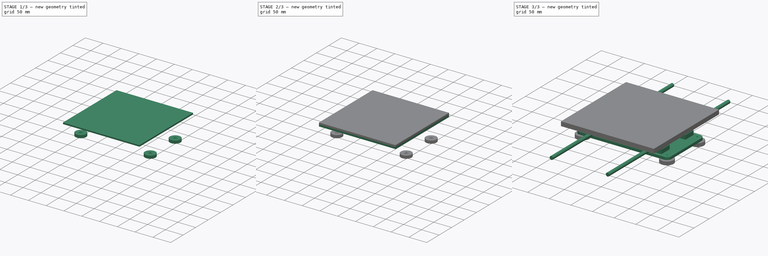
[diagram: build sequence overview — one tinted view per stage of 3, left to right]
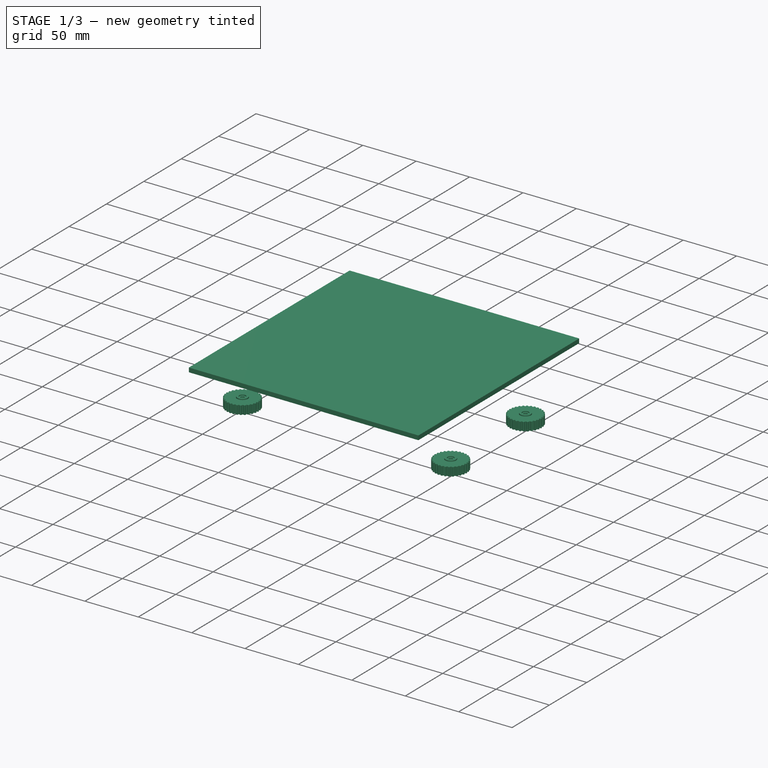
[diagram: stage 1 of 3 — iso view after this stage's code; geometry added in this stage tinted green]
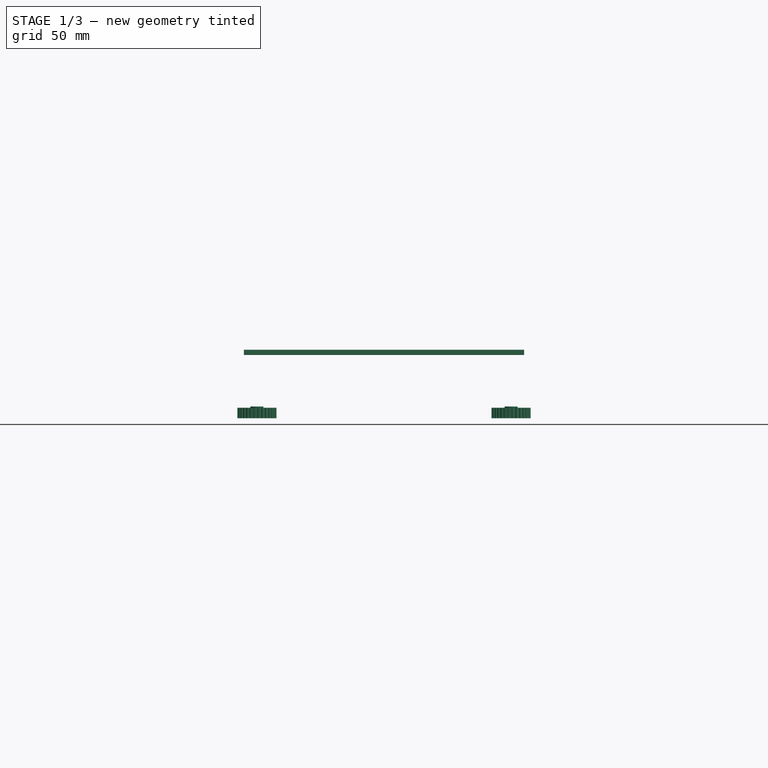
[diagram: stage 1 of 3 — front view after this stage's code; geometry added in this stage tinted green]
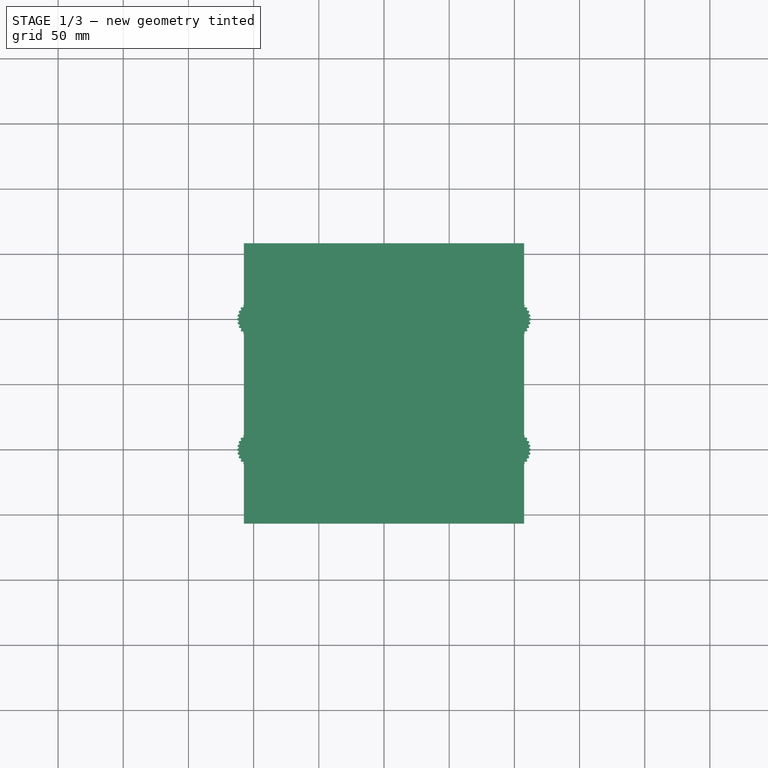
[diagram: stage 1 of 3 — top view after this stage's code; geometry added in this stage tinted green]
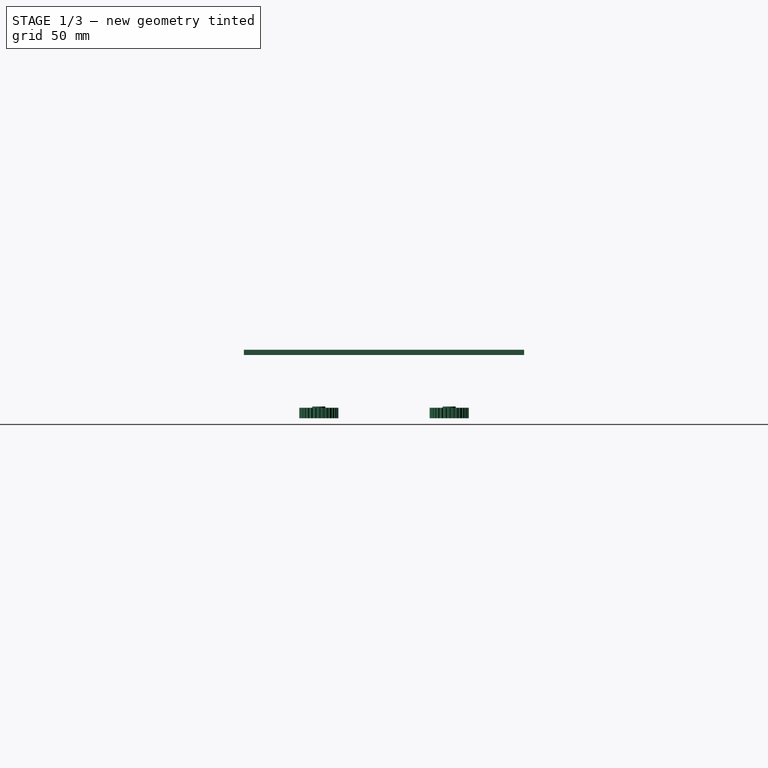
[diagram: stage 1 of 3 — right view after this stage's code; geometry added in this stage tinted green]
FCSTD DOCUMENT  (FreeCAD 0.16R6707 (Git))
Label: Y-Axis
License: All rights reserved
LicenseURL: http://en.wikipedia.org/wiki/All_rights_reserved
objects: Part::Feature×12, Sketcher::SketchObject×6, PartDesign::Pad×6, Part::MultiFuse×2
note: 32 computed .brp shape members not serialized (recipe doc carries the construction recipe); baked Part::Feature solids carry a one-line shape summary decoded from their .brp

FEATURE [Sketcher::SketchObject] Sketch004
  Placement = pos=(0,0,26) rot=(0,0,1;0rad)
  sketch-geometry (8):
    g0: LineSegment StartX=-107.5 StartY=107.5 StartZ=0 EndX=107.5 EndY=107.5 EndZ=0
    g1: LineSegment StartX=107.5 StartY=107.5 StartZ=0 EndX=107.5 EndY=-107.5 EndZ=0
    g2: LineSegment StartX=107.5 StartY=-107.5 StartZ=0 EndX=-107.5 EndY=-107.5 EndZ=0
    g3: LineSegment StartX=-107.5 StartY=-107.5 StartZ=0 EndX=-107.5 EndY=107.5 EndZ=0
    g4: Circle CenterX=-102.5 CenterY=-102.5 CenterZ=0 NormalX=0 NormalY=0 NormalZ=1 Radius=1.3
    g5: Circle CenterX=-102.5 CenterY=102.5 CenterZ=0 NormalX=0 NormalY=0 NormalZ=1 Radius=1.3
    g6: Circle CenterX=102.5 CenterY=102.5 CenterZ=0 NormalX=0 NormalY=0 NormalZ=1 Radius=1.3
    g7: Circle CenterX=102.5 CenterY=-102.5 CenterZ=0 NormalX=0 NormalY=0 NormalZ=1 Radius=1.3
  constraints (21):
    c: Coincident(g0,g1)
    c: Coincident(g1,g2)
    c: Coincident(g2,g3)
    c: Coincident(g3,g0)
    c: Horizontal(g0)
    c: Horizontal(g2)
    c: Vertical(g1)
    c: Vertical(g3)
    c: Symmetric(g1,g2,g-2)
    c: Symmetric(g0,g1,g-1)
    c: Equal(g1,g0)
    c: DistanceY(g1,g1) = 215
    c: Radius(g5) = 1.3
    c: Equal(g5,g6)
    c: Equal(g5,g7)
    c: Equal(g5,g4)
    c: Symmetric(g4,g7,g-2)
    c: Symmetric(g7,g6,g-1)
    c: Symmetric(g5,g4,g-1)
    c: DistanceX(g5,g6) = 205
    c: DistanceY(g4,g5) = 205
FEATURE [PartDesign::Pad] Pad004  label="HeatBed"
  Length = 1
  Length2 = 100
  Placement = pos=(0,0,26) rot=(0,0,1;0rad)
  Sketch = -> Sketch004
  Type = 0
FEATURE [Sketcher::SketchObject] Sketch005
  Placement = pos=(0,0,27) rot=(0,0,1;0rad)
  sketch-geometry (4):
    g0: LineSegment StartX=-107.5 StartY=107.5 StartZ=0 EndX=107.5 EndY=107.5 EndZ=0
    g1: LineSegment StartX=107.5 StartY=107.5 StartZ=0 EndX=107.5 EndY=-107.5 EndZ=0
    g2: LineSegment StartX=107.5 StartY=-107.5 StartZ=0 EndX=-107.5 EndY=-107.5 EndZ=0
    g3: LineSegment StartX=-107.5 StartY=-107.5 StartZ=0 EndX=-107.5 EndY=107.5 EndZ=0
  constraints (12):
    c: Coincident(g0,g1)
    c: Coincident(g1,g2)
    c: Coincident(g2,g3)
    c: Coincident(g3,g0)
    c: Horizontal(g0)
    c: Horizontal(g2)
    c: Vertical(g1)
    c: Vertical(g3)
    c: Symmetric(g1,g2,g-2)
    c: Symmetric(g0,g1,g-1)
    c: Equal(g1,g0)
    c: DistanceY(g1,g1) = 215
FEATURE [PartDesign::Pad] Pad005  label="GlassPrintingBed"
  Length = 3
  Length2 = 100
  Placement = pos=(0,0,27) rot=(0,0,1;0rad)
  Sketch = -> Sketch005
  Type = 0
FEATURE [Part::Feature] Part__Feature008  label="HeightKnob001"
  Placement = pos=(97.5,-50,-22.5) rot=(0,0,1;0rad)
  shape: bbox 30 x 29.93 x 9 mm, 135 faces (baked)
FEATURE [Part::Feature] Part__Feature009  label="HeightKnob002"
  Placement = pos=(97.5,50,-22.5) rot=(0,0,1;0rad)
  shape: bbox 30 x 29.93 x 9 mm, 135 faces (baked)
FEATURE [Part::Feature] Part__Feature010  label="HeightKnob003"
  Placement = pos=(-97.5,-50,-22.5) rot=(0,0,1;0rad)
  shape: bbox 30 x 29.93 x 9 mm, 135 faces (baked)
FEATURE [Part::Feature] Part__Feature011  label="HeightKnob004"
  Placement = pos=(-97.5,50,-22.5) rot=(0,0,1;0rad)
  shape: bbox 30 x 29.93 x 9 mm, 135 faces (baked)
FEATURE [Part::MultiFuse] Fusion001  label="HeightKnob"
  Shapes = -> [Part__Feature008,Part__Feature009,Part__Feature010,Part__Feature011]
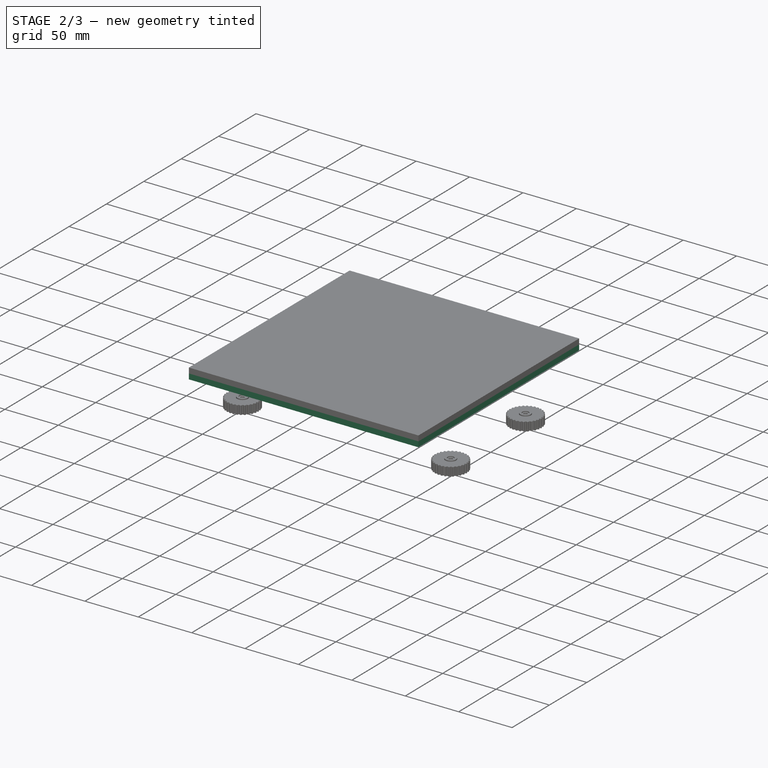
[diagram: stage 2 of 3 — iso view after this stage's code; geometry added in this stage tinted green]
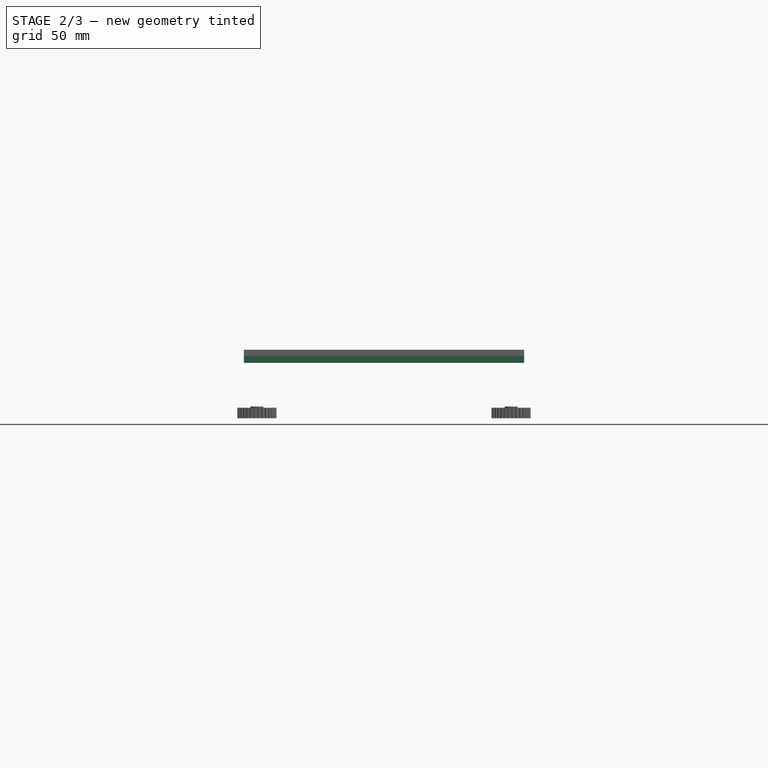
[diagram: stage 2 of 3 — front view after this stage's code; geometry added in this stage tinted green]
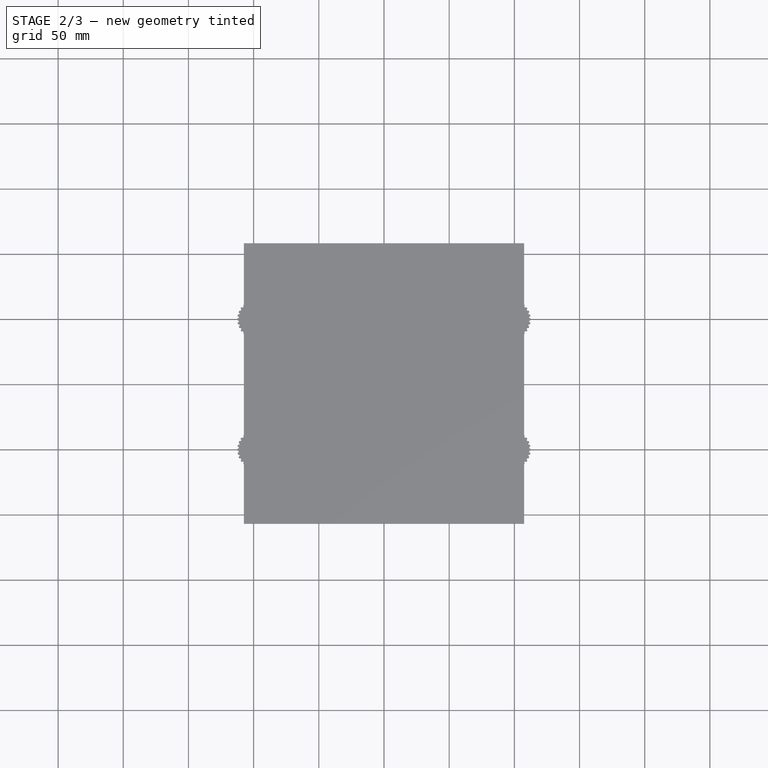
[diagram: stage 2 of 3 — top view after this stage's code; geometry added in this stage tinted green]
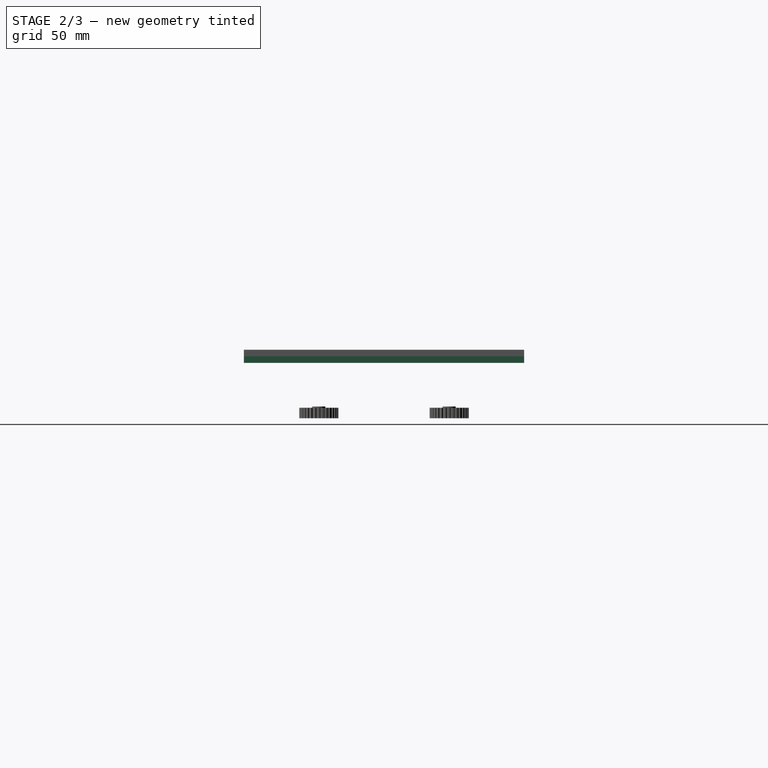
[diagram: stage 2 of 3 — right view after this stage's code; geometry added in this stage tinted green]
FEATURE [PartDesign::Pad] Pad002  label="PrintingBedBase"
  Length = 5
  Length2 = 100
  Placement = pos=(0,0,20) rot=(0,0,1;0rad)
  Sketch = -> Sketch002
  Type = 0
FEATURE [Sketcher::SketchObject] Sketch003
  Placement = pos=(0,0,25) rot=(0,0,1;0rad)
  sketch-geometry (4):
    g0: LineSegment StartX=-107.5 StartY=107.5 StartZ=0 EndX=107.5 EndY=107.5 EndZ=0
    g1: LineSegment StartX=107.5 StartY=107.5 StartZ=0 EndX=107.5 EndY=-107.5 EndZ=0
    g2: LineSegment StartX=107.5 StartY=-107.5 StartZ=0 EndX=-107.5 EndY=-107.5 EndZ=0
    g3: LineSegment StartX=-107.5 StartY=-107.5 StartZ=0 EndX=-107.5 EndY=107.5 EndZ=0
  constraints (12):
    c: Coincident(g0,g1)
    c: Coincident(g1,g2)
    c: Coincident(g2,g3)
    c: Coincident(g3,g0)
    c: Horizontal(g0)
    c: Horizontal(g2)
    c: Vertical(g1)
    c: Vertical(g3)
    c: Symmetric(g1,g2,g-2)
    c: Symmetric(g0,g1,g-1)
    c: Equal(g1,g0)
    c: DistanceY(g1,g1) = 215
FEATURE [PartDesign::Pad] Pad003  label="Insulation"
  Length = 1
  Length2 = 100
  Placement = pos=(0,0,25) rot=(0,0,1;0rad)
  Sketch = -> Sketch003
  Type = 0
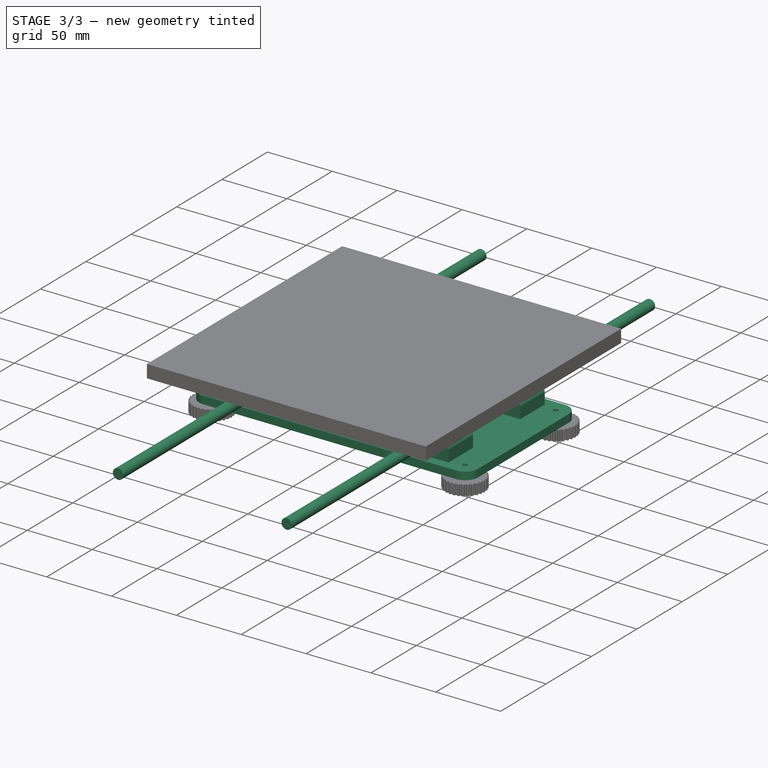
[diagram: stage 3 of 3 — iso view after this stage's code; geometry added in this stage tinted green]
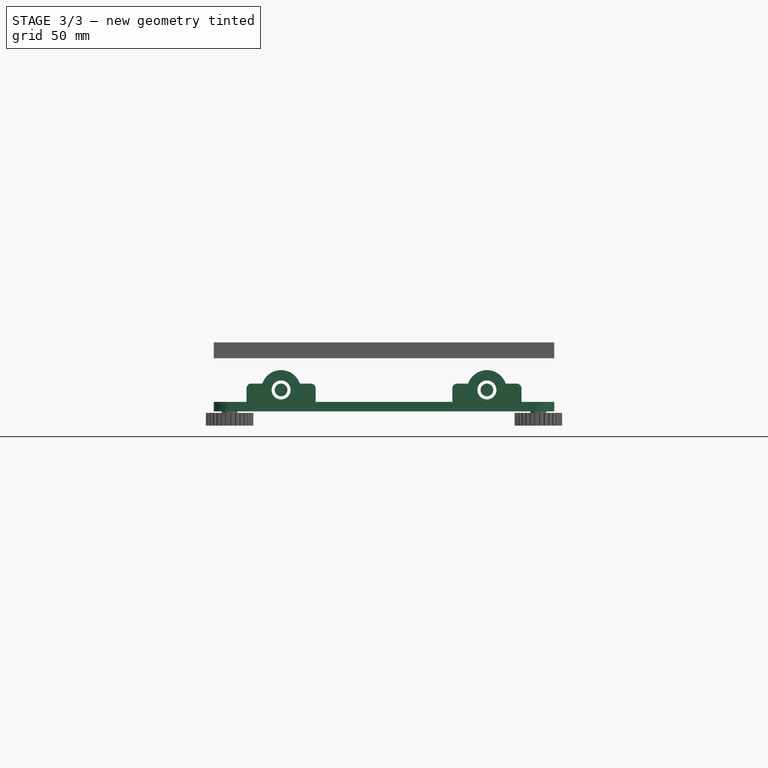
[diagram: stage 3 of 3 — front view after this stage's code; geometry added in this stage tinted green]
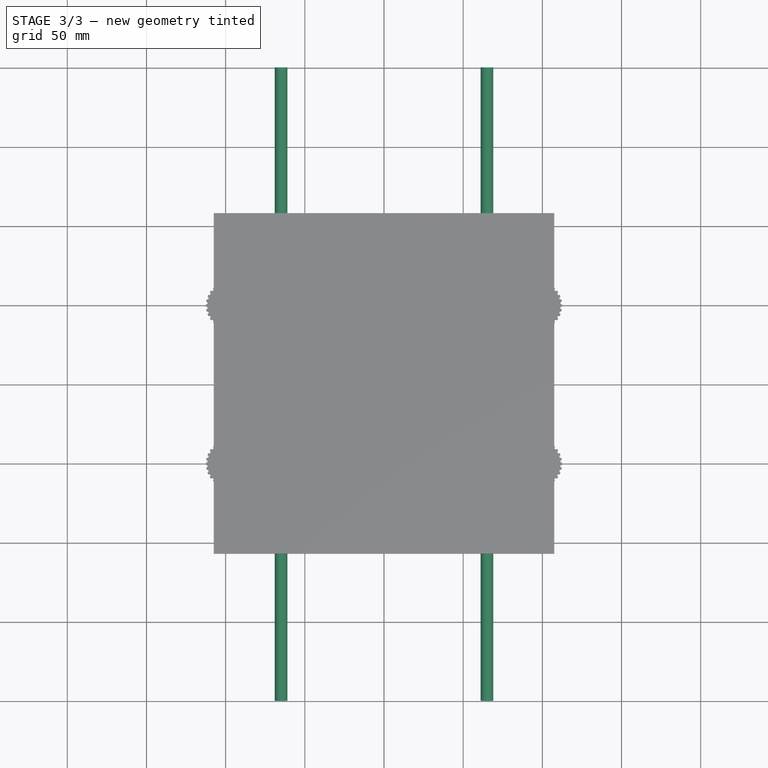
[diagram: stage 3 of 3 — top view after this stage's code; geometry added in this stage tinted green]
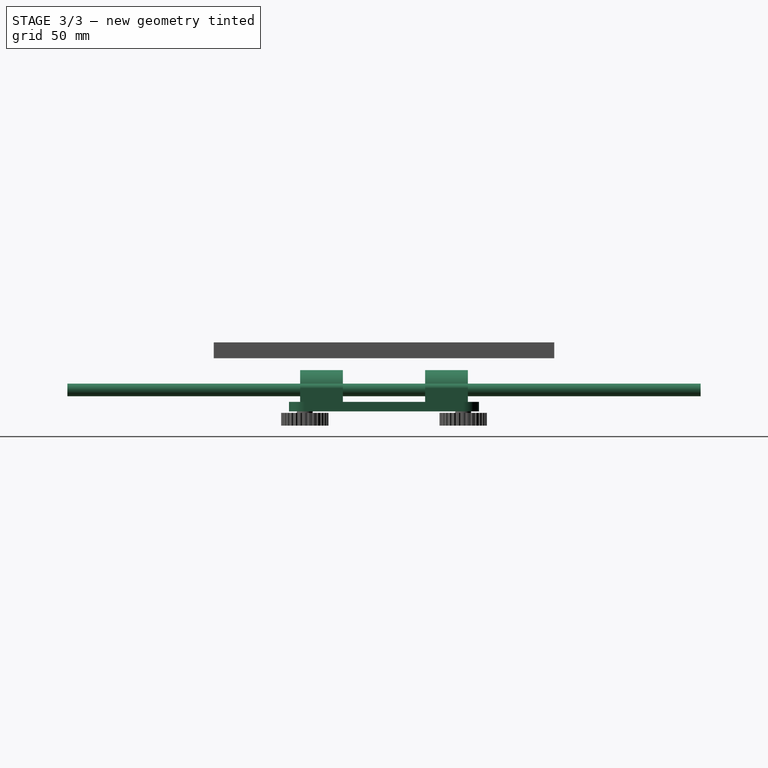
[diagram: stage 3 of 3 — right view after this stage's code; geometry added in this stage tinted green]
FEATURE [Sketcher::SketchObject] Sketch
  Placement = pos=(0,0,0) rot=(1,0,0;1.5708rad)
  sketch-geometry (2):
    g0: Circle CenterX=-65 CenterY=0 CenterZ=0 NormalX=0 NormalY=0 NormalZ=1 Radius=4
    g1: Circle CenterX=65 CenterY=0 CenterZ=0 NormalX=0 NormalY=0 NormalZ=1 Radius=4
  constraints (6):
    c: PointOnObject(g1,g-1)
    c: PointOnObject(g0,g-1)
    c: Radius(g0) = 4
    c: Equal(g0,g1)
    c: DistanceX(g0,g1) = 130
    c: Symmetric(g0,g1,g-2)
FEATURE [PartDesign::Pad] Pad  label="Rods"
  Length = 400
  Length2 = 100
  Midplane = true
  Placement = pos=(0,0,0) rot=(1,0,0;1.5708rad)
  Sketch = -> Sketch
  Type = 0
FEATURE [Sketcher::SketchObject] Sketch001
  Placement = pos=(0,0,-13.5) rot=(0,0,1;0rad)
  sketch-geometry (36):
    g0: LineSegment StartX=-97.5 StartY=60 StartZ=0 EndX=97.5 EndY=60 EndZ=0
    g1: LineSegment StartX=107.5 StartY=50 StartZ=0 EndX=107.5 EndY=-50 EndZ=0
    g2: LineSegment StartX=97.5 StartY=-60 StartZ=0 EndX=-97.5 EndY=-60 EndZ=0
    g3: LineSegment StartX=-107.5 StartY=-50 StartZ=0 EndX=-107.5 EndY=50 EndZ=0
    g4: ArcOfCircle CenterX=-97.5 CenterY=50 CenterZ=0 NormalX=0 NormalY=0 NormalZ=1 Radius=10 StartAngle=1.57079 EndAngle=3.14159
    g5: ArcOfCircle CenterX=97.5 CenterY=50 CenterZ=0 NormalX=0 NormalY=0 NormalZ=1 Radius=9.99998 StartAngle=6.28319 EndAngle=7.85398
    g6: ArcOfCircle CenterX=97.5 CenterY=-50 CenterZ=0 NormalX=0 NormalY=0 NormalZ=1 Radius=10 StartAngle=4.71239 EndAngle=6.28319
    g7: ArcOfCircle CenterX=-97.5 CenterY=-50 CenterZ=0 NormalX=0 NormalY=0 NormalZ=1 Radius=10 StartAngle=3.14159 EndAngle=4.71239
    g8: ArcOfCircle CenterX=-82.5 CenterY=40 CenterZ=0 NormalX=0 NormalY=0 NormalZ=1 Radius=1.8 StartAngle=1.5708 EndAngle=4.71239
    g9: ArcOfCircle CenterX=-77.5 CenterY=40 CenterZ=0 NormalX=0 NormalY=0 NormalZ=1 Radius=1.8 StartAngle=4.71239 EndAngle=7.85398
    g10: LineSegment StartX=-82.5 StartY=38.2 StartZ=0 EndX=-77.5 EndY=38.2 EndZ=0
    g11: LineSegment StartX=-82.5 StartY=41.8 StartZ=0 EndX=-77.5 EndY=41.8 EndZ=0
    g12: ArcOfCircle CenterX=-52.5 CenterY=40 CenterZ=0 NormalX=0 NormalY=0 NormalZ=1 Radius=1.8 StartAngle=1.5708 EndAngle=4.71239
    g13: ArcOfCircle CenterX=-47.5 CenterY=40 CenterZ=0 NormalX=0 NormalY=0 NormalZ=1 Radius=1.8 StartAngle=4.71239 EndAngle=7.85398
    g14: LineSegment StartX=-52.5 StartY=38.2 StartZ=0 EndX=-47.5 EndY=38.2 EndZ=0
    g15: LineSegment StartX=-52.5 StartY=41.8 StartZ=0 EndX=-47.5 EndY=41.8 EndZ=0
    g16: ArcOfCircle CenterX=47.5 CenterY=40 CenterZ=0 NormalX=0 NormalY=0 NormalZ=1 Radius=1.8 StartAngle=1.5708 EndAngle=4.71239
    g17: ArcOfCircle CenterX=52.5 CenterY=40 CenterZ=0 NormalX=0 NormalY=0 NormalZ=1 Radius=1.8 StartAngle=4.71239 EndAngle=7.85398
    g18: LineSegment StartX=47.5 StartY=38.2 StartZ=0 EndX=52.5 EndY=38.2 EndZ=0
    g19: LineSegment StartX=47.5 StartY=41.8 StartZ=0 EndX=52.5 EndY=41.8 EndZ=0
    g20: ArcOfCircle CenterX=77.5 CenterY=40 CenterZ=0 NormalX=0 NormalY=0 NormalZ=1 Radius=1.8 StartAngle=1.5708 EndAngle=4.71239
    g21: ArcOfCircle CenterX=82.5 CenterY=40 CenterZ=0 NormalX=0 NormalY=0 NormalZ=1 Radius=1.8 StartAngle=4.71239 EndAngle=7.85398
    g22: LineSegment StartX=77.5 StartY=38.2 StartZ=0 EndX=82.5 EndY=38.2 EndZ=0
    g23: LineSegment StartX=77.5 StartY=41.8 StartZ=0 EndX=82.5 EndY=41.8 EndZ=0
    g24: Circle CenterX=-80 CenterY=-40 CenterZ=0 NormalX=0 NormalY=0 NormalZ=1 Radius=1.8
    g25: Circle CenterX=-50 CenterY=-40 CenterZ=0 NormalX=0 NormalY=0 NormalZ=1 Radius=1.8
    g26: Circle CenterX=50 CenterY=-40 CenterZ=0 NormalX=0 NormalY=0 NormalZ=1 Radius=1.8
    g27: Circle CenterX=80 CenterY=-40 CenterZ=0 NormalX=0 NormalY=0 NormalZ=1 Radius=1.8
    g28: Circle CenterX=-97.5 CenterY=-50 CenterZ=0 NormalX=0 NormalY=0 NormalZ=1 Radius=1.8
    g29: Circle CenterX=-97.5 CenterY=50 CenterZ=0 NormalX=0 NormalY=0 NormalZ=1 Radius=1.8
    g30: Circle CenterX=97.5 CenterY=50 CenterZ=0 NormalX=0 NormalY=0 NormalZ=1 Radius=1.8
    g31: Circle CenterX=97.5 CenterY=-50 CenterZ=0 NormalX=0 NormalY=0 NormalZ=1 Radius=1.8
    g32: Circle CenterX=-6 CenterY=5 CenterZ=0 NormalX=0 NormalY=0 NormalZ=1 Radius=1.8
    g33: Circle CenterX=6 CenterY=5 CenterZ=0 NormalX=0 NormalY=0 NormalZ=1 Radius=1.8
    g34: Circle CenterX=-18.5 CenterY=-5 CenterZ=0 NormalX=0 NormalY=0 NormalZ=1 Radius=1.8
    g35: Circle CenterX=18.5 CenterY=-5 CenterZ=0 NormalX=0 NormalY=0 NormalZ=1 Radius=1.8
  constraints (96):
    c: Horizontal(g2)
    c: Vertical(g1)
    c: Vertical(g3)
    c: DistanceX(g0,g0) = 195
    c: DistanceY(g3,g3) = 100
    c: Symmetric(g0,g0,g-2)
    c: Symmetric(g2,g0,g-1)
    c: Coincident(g7,g3)
    c: Coincident(g7,g2)
    c: Coincident(g3,g4)
    c: Coincident(g4,g0)
    c: Coincident(g0,g5)
    c: Coincident(g5,g1)
    c: Coincident(g1,g6)
    c: Coincident(g6,g2)
    c: Tangent(g6,g1)
    c: Tangent(g5,g1)
    c: Tangent(g5,g0)
    c: Tangent(g2,g7)
    c: Tangent(g7,g3)
    c: Tangent(g3,g4)
    c: Tangent(g4,g0)
    c: Tangent(g6,g2)
    c: Equal(g4,g7)
    c: Equal(g7,g6)
    c: Radius(g4) = 10
    c: Tangent(g8,g11) = 1.5708
    c: Tangent(g8,g10) = -1.5708
    c: Tangent(g10,g9) = -1.5708
    c: Tangent(g11,g9) = 1.5708
    c: Horizontal(g10)
    c: Equal(g8,g9)
    c: Tangent(g12,g15) = 1.5708
    c: Tangent(g12,g14) = -1.5708
    c: Tangent(g14,g13) = -1.5708
    c: Tangent(g15,g13) = 1.5708
    c: Horizontal(g14)
    c: Equal(g12,g13)
    c: Tangent(g16,g19) = 1.5708
    c: Tangent(g16,g18) = -1.5708
    c: Tangent(g18,g17) = -1.5708
    c: Tangent(g19,g17) = 1.5708
    c: Horizontal(g18)
    c: Equal(g16,g17)
    c: Tangent(g20,g23) = 1.5708
    c: Tangent(g20,g22) = -1.5708
    c: Tangent(g22,g21) = -1.5708
    c: Tangent(g23,g21) = 1.5708
    c: Horizontal(g22)
    c: Equal(g20,g21)
    c: Radius(g24) = 1.8
    c: Equal(g24,g25)
    c: Equal(g24,g26)
    c: Equal(g24,g27)
    c: Equal(g24,g20)
    c: Equal(g24,g16)
    c: Equal(g24,g12)
    c: Equal(g24,g8)
    c: DistanceY(g25,g24) = 0
    c: DistanceY(g26,g25) = 0
    c: DistanceY(g26,g27) = 0
    c: DistanceY(g20,g17) = 0
    c: DistanceY(g16,g13) = 0
    c: DistanceY(g9,g12) = 0
    c: Symmetric(g13,g16,g-2)
    c: Symmetric(g25,g26,g-2)
    c: DistanceX(g24,g25) = 30
    c: DistanceX(g26,g27) = 30
    c: DistanceX(g25,g26) = 100
    c: DistanceX(g17,g20) = 25
    c: DistanceX(g16,g21) = 35
    c: Equal(g19,g23)
    c: Equal(g23,g15)
    c: Equal(g15,g11)
    c: DistanceX(g9,g12) = 25
    c: DistanceY(g8,g0) = 20
    c: DistanceY(g2,g24) = 20
    c: DistanceX(g13,g16) = 95
    c: Radius(g31) = 1.8
    c: Equal(g31,g30)
    c: Equal(g31,g29)
    c: Equal(g31,g28)
    c: Coincident(g28,g7)
    c: Coincident(g29,g4)
    c: Coincident(g30,g5)
    c: Coincident(g31,g6)
    c: Radius(g32) = 1.8
    c: Equal(g32,g33)
    c: Equal(g32,g34)
    c: Equal(g32,g35)
    c: Symmetric(g32,g33,g-2)
    c: DistanceX(g32,g33) = 12
    c: DistanceY(g34,g32) = 10
    c: Symmetric(g34,g35,g-2)
    c: DistanceX(g34,g35) = 37
    c: DistanceY(g-1,g32) = 5
FEATURE [PartDesign::Pad] Pad001  label="Y-Base"
  Length = 6
  Length2 = 100
  Placement = pos=(0,0,-13.5) rot=(0,0,1;0rad)
  Sketch = -> Sketch001
  Type = 0
FEATURE [Part::Feature] Part__Feature  label="BearingMount001"
  Placement = pos=(65,-26,0) rot=(1,0,0;1.5708rad)
  shape: bbox 43.69 x 27 x 12.5 mm, 30 faces (baked)
FEATURE [Part::Feature] Part__Feature001  label="BearingMount002"
  Placement = pos=(65,53,0) rot=(1,0,0;1.5708rad)
  shape: bbox 43.69 x 27 x 12.5 mm, 30 faces (baked)
FEATURE [Part::Feature] Part__Feature002  label="BearingMount003"
  Placement = pos=(-65,-26,0) rot=(1,0,0;1.5708rad)
  shape: bbox 43.69 x 27 x 12.5 mm, 30 faces (baked)
FEATURE [Part::Feature] Part__Feature003  label="BearingMount004"
  Placement = pos=(-65,53,0) rot=(1,0,0;1.5708rad)
  shape: bbox 43.69 x 27 x 12.5 mm, 30 faces (baked)
FEATURE [Sketcher::SketchObject] Sketch002
  Placement = pos=(0,0,20) rot=(0,0,1;0rad)
  sketch-geometry (8):
    g0: LineSegment StartX=-107.5 StartY=107.5 StartZ=0 EndX=107.5 EndY=107.5 EndZ=0
    g1: LineSegment StartX=107.5 StartY=107.5 StartZ=0 EndX=107.5 EndY=-107.5 EndZ=0
    g2: LineSegment StartX=107.5 StartY=-107.5 StartZ=0 EndX=-107.5 EndY=-107.5 EndZ=0
    g3: LineSegment StartX=-107.5 StartY=-107.5 StartZ=0 EndX=-107.5 EndY=107.5 EndZ=0
    g4: Circle CenterX=-97.5 CenterY=-50 CenterZ=0 NormalX=0 NormalY=0 NormalZ=1 Radius=1.8
    g5: Circle CenterX=-97.5 CenterY=50 CenterZ=0 NormalX=0 NormalY=0 NormalZ=1 Radius=1.8
    g6: Circle CenterX=97.5 CenterY=-50 CenterZ=0 NormalX=0 NormalY=0 NormalZ=1 Radius=1.8
    g7: Circle CenterX=97.5 CenterY=50 CenterZ=0 NormalX=0 NormalY=0 NormalZ=1 Radius=1.8
  constraints (21):
    c: Coincident(g0,g1)
    c: Coincident(g1,g2)
    c: Coincident(g2,g3)
    c: Coincident(g3,g0)
    c: Horizontal(g0)
    c: Horizontal(g2)
    c: Vertical(g1)
    c: Vertical(g3)
    c: Symmetric(g1,g2,g-2)
    c: Symmetric(g0,g1,g-1)
    c: Equal(g1,g0)
    c: DistanceY(g1,g1) = 215
    c: Radius(g7) = 1.8
    c: Equal(g7,g6)
    c: Equal(g7,g5)
    c: Equal(g7,g4)
    c: Symmetric(g5,g7,g-2)
    c: Symmetric(g5,g4,g-1)
    c: Symmetric(g7,g6,g-1)
    c: DistanceX(g5,g7) = 195
    c: DistanceY(g4,g5) = 100
FEATURE [Part::Feature] Part__Feature004  label="BearingBase001"
  Placement = pos=(65,-53,0) rot=(-1,0,0;1.5708rad)
  shape: bbox 43.69 x 27 x 7.5 mm, 26 faces (baked)
FEATURE [Part::Feature] Part__Feature005  label="BearingBase002"
  Placement = pos=(65,26,0) rot=(-1,0,0;1.5708rad)
  shape: bbox 43.69 x 27 x 7.5 mm, 26 faces (baked)
FEATURE [Part::Feature] Part__Feature006  label="BearingBase003"
  Placement = pos=(-65,-53,0) rot=(-1,0,0;1.5708rad)
  shape: bbox 43.69 x 27 x 7.5 mm, 26 faces (baked)
FEATURE [Part::Feature] Part__Feature007  label="BearingBase004"
  Placement = pos=(-65,26,0) rot=(-1,0,0;1.5708rad)
  shape: bbox 43.69 x 27 x 7.5 mm, 26 faces (baked)
FEATURE [Part::MultiFuse] Fusion  label="BearingMount"
  Shapes = -> [Part__Feature007,Part__Feature,Part__Feature001,Part__Feature002,Part__Feature003,Part__Feature004,Part__Feature005,Part__Feature006]
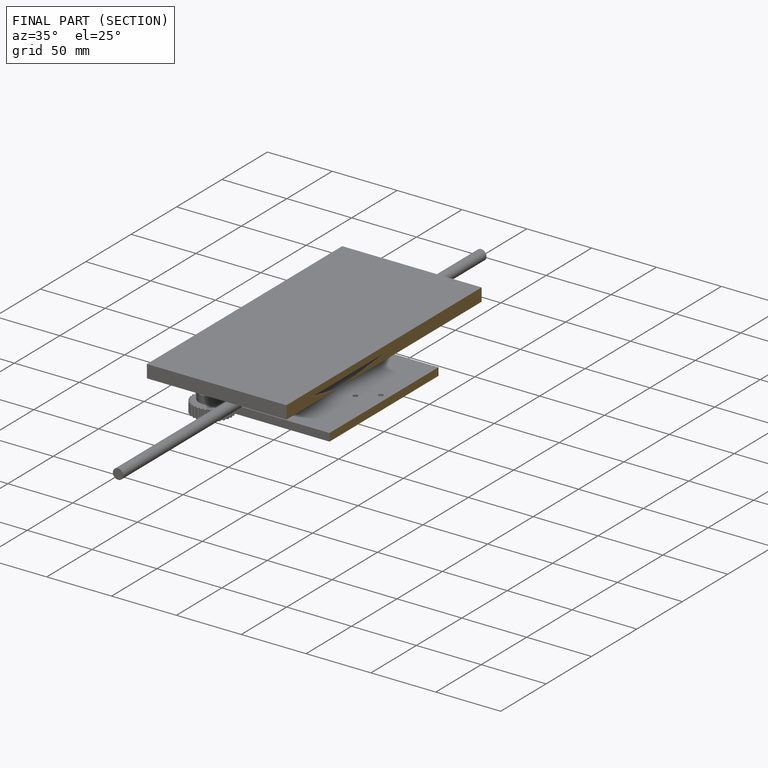
[diagram: finished part — half-section view (interior)]
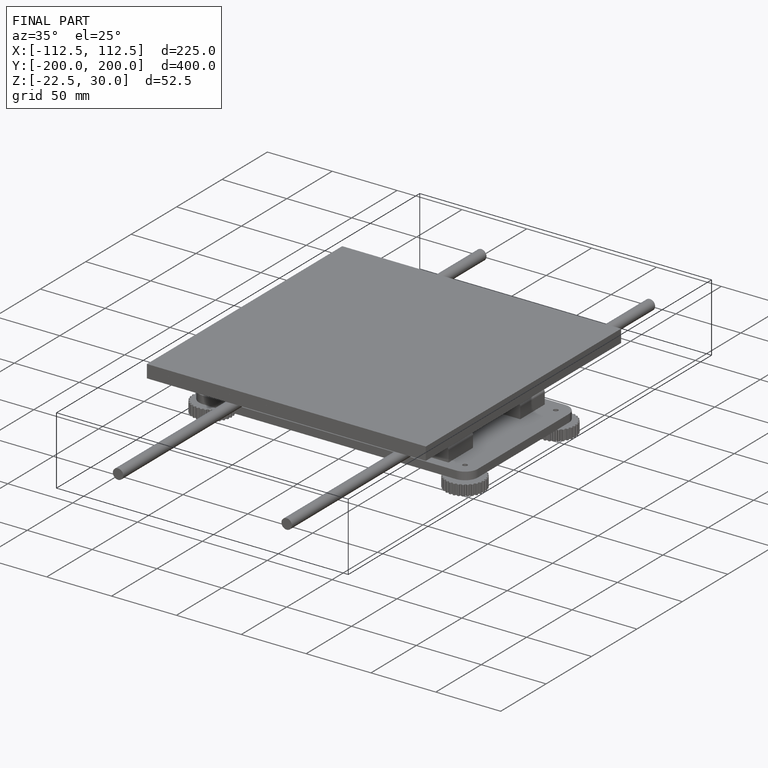
[diagram: finished part — iso view with bounding-box wireframe]
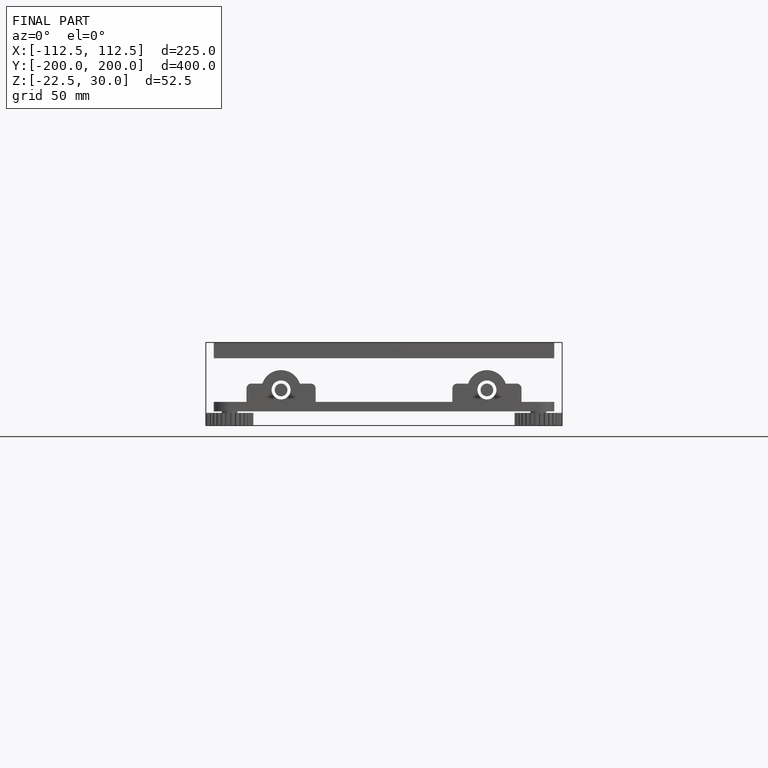
[diagram: finished part — front view with bounding-box wireframe]
